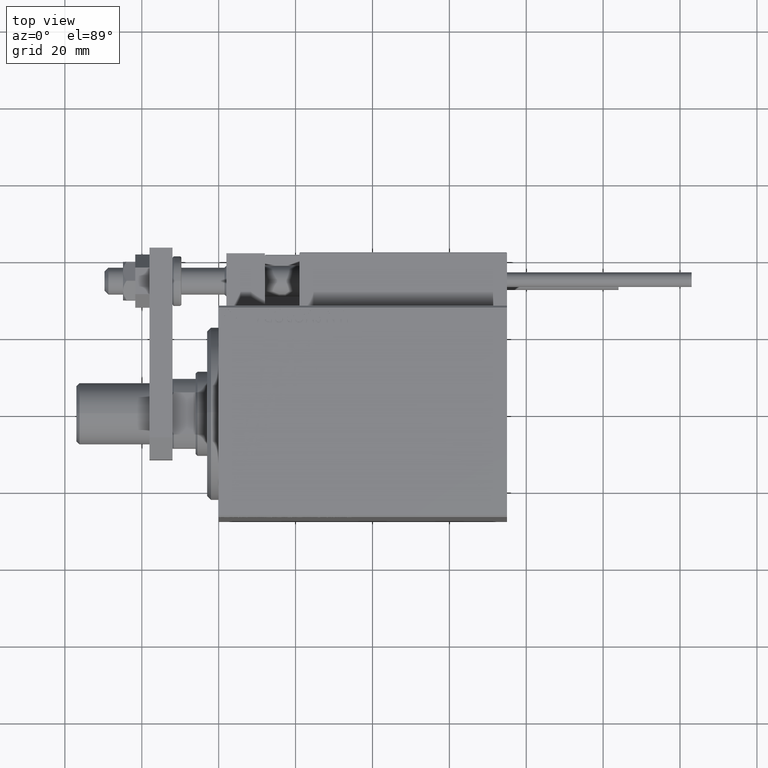
[diagram: clean part render]
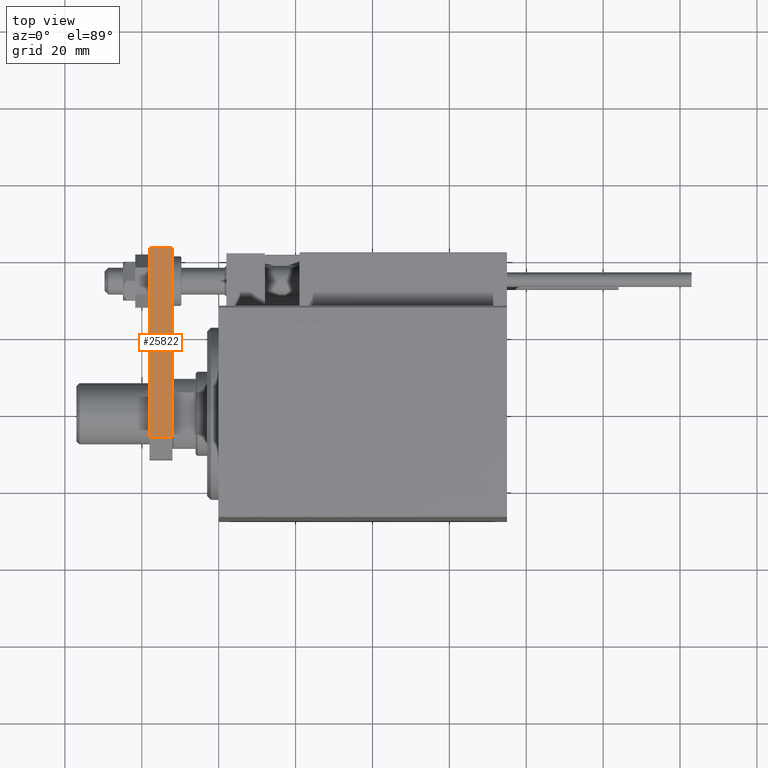
[diagram: same view with one face highlighted and labeled with its STEP entity id]
A machine part, top view. The second image highlights one B-rep face of the part: STEP entity #25822.
In plain terms, the highlighted planar face has unit normal (-0, -0, -1).
Its self-contained STEP definition (entity closure, byte-faithful):
#1389 = EDGE_CURVE ( 'NONE', #2928, #2560, #13249, .T. ) ;
#1955 = DIRECTION ( 'NONE',  ( -6.308085367188389994E-17, 1.000000000000000000, 0.000000000000000000 ) ) ;
#2560 = VERTEX_POINT ( 'NONE', #44095 ) ;
#2928 = VERTEX_POINT ( 'NONE', #29103 ) ;
#4082 = FACE_OUTER_BOUND ( 'NONE', #27391, .T. ) ;
#7518 = VERTEX_POINT ( 'NONE', #48153 ) ;
#10595 = DIRECTION ( 'NONE',  ( -6.308085367188389994E-17, 1.000000000000000000, 0.000000000000000000 ) ) ;
#10638 = AXIS2_PLACEMENT_3D ( 'NONE', #25676, #22020, #45716 ) ;
#11422 = VECTOR ( 'NONE', #1955, 1000.000000000000000 ) ;
#13249 = LINE ( 'NONE', #24747, #42198 ) ;
#13792 = ORIENTED_EDGE ( 'NONE', *, *, #49412, .T. ) ;
#14850 = ORIENTED_EDGE ( 'NONE', *, *, #1389, .F. ) ;
#21750 = CARTESIAN_POINT ( 'NONE',  ( 12.50000000000000355, 4.814824860968089633E-32, 0.000000000000000000 ) ) ;
#21814 = LINE ( 'NONE', #30147, #49693 ) ;
#22020 = DIRECTION ( 'NONE',  ( -1.000000000000000000, -6.308085367188389994E-17, 0.000000000000000000 ) ) ;
#24747 = CARTESIAN_POINT ( 'NONE',  ( 12.50000000000000000, 55.00000000000000000, 6.000000000000000000 ) ) ;
#24909 = EDGE_CURVE ( 'NONE', #7518, #2560, #37127, .T. ) ;
#25676 = CARTESIAN_POINT ( 'NONE',  ( 12.50000000000000355, 4.814824860968089633E-32, 6.000000000000000000 ) ) ;
#25822 = ADVANCED_FACE ( 'NONE', ( #4082 ), #35870, .F. ) ;
#27391 = EDGE_LOOP ( 'NONE', ( #36762, #13792, #37223, #14850 ) ) ;
#28138 = VECTOR ( 'NONE', #49055, 1000.000000000000000 ) ;
#29103 = CARTESIAN_POINT ( 'NONE',  ( 12.50000000000000000, 55.00000000000000000, 6.000000000000000000 ) ) ;
#30147 = CARTESIAN_POINT ( 'NONE',  ( 12.50000000000000355, 4.814824860968089633E-32, 6.000000000000000000 ) ) ;
#32429 = LINE ( 'NONE', #48045, #28138 ) ;
#32670 = CARTESIAN_POINT ( 'NONE',  ( 12.50000000000000355, 5.659999999999991260, 6.000000000000000000 ) ) ;
#35870 = PLANE ( 'NONE',  #10638 ) ;
#36762 = ORIENTED_EDGE ( 'NONE', *, *, #42946, .F. ) ;
#37127 = LINE ( 'NONE', #21750, #11422 ) ;
#37223 = ORIENTED_EDGE ( 'NONE', *, *, #24909, .T. ) ;
#42198 = VECTOR ( 'NONE', #44524, 1000.000000000000000 ) ;
#42946 = EDGE_CURVE ( 'NONE', #51198, #2928, #21814, .T. ) ;
#44095 = CARTESIAN_POINT ( 'NONE',  ( 12.50000000000000000, 55.00000000000000000, 0.000000000000000000 ) ) ;
#44524 = DIRECTION ( 'NONE',  ( -0.000000000000000000, -0.000000000000000000, -1.000000000000000000 ) ) ;
#45716 = DIRECTION ( 'NONE',  ( 6.308085367188389994E-17, -1.000000000000000000, 0.000000000000000000 ) ) ;
#48045 = CARTESIAN_POINT ( 'NONE',  ( 12.50000000000000355, 5.659999999999991260, 6.000000000000000000 ) ) ;
#48153 = CARTESIAN_POINT ( 'NONE',  ( 12.50000000000000355, 5.659999999999991260, 0.000000000000000000 ) ) ;
#49055 = DIRECTION ( 'NONE',  ( 0.000000000000000000, 0.000000000000000000, -1.000000000000000000 ) ) ;
#49412 = EDGE_CURVE ( 'NONE', #51198, #7518, #32429, .T. ) ;
#49693 = VECTOR ( 'NONE', #10595, 1000.000000000000000 ) ;
#51198 = VERTEX_POINT ( 'NONE', #32670 ) ;